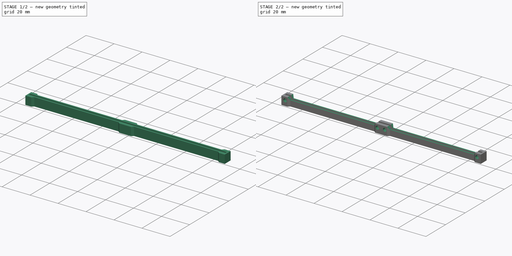
[diagram: build sequence overview — one tinted view per stage of 2, left to right]
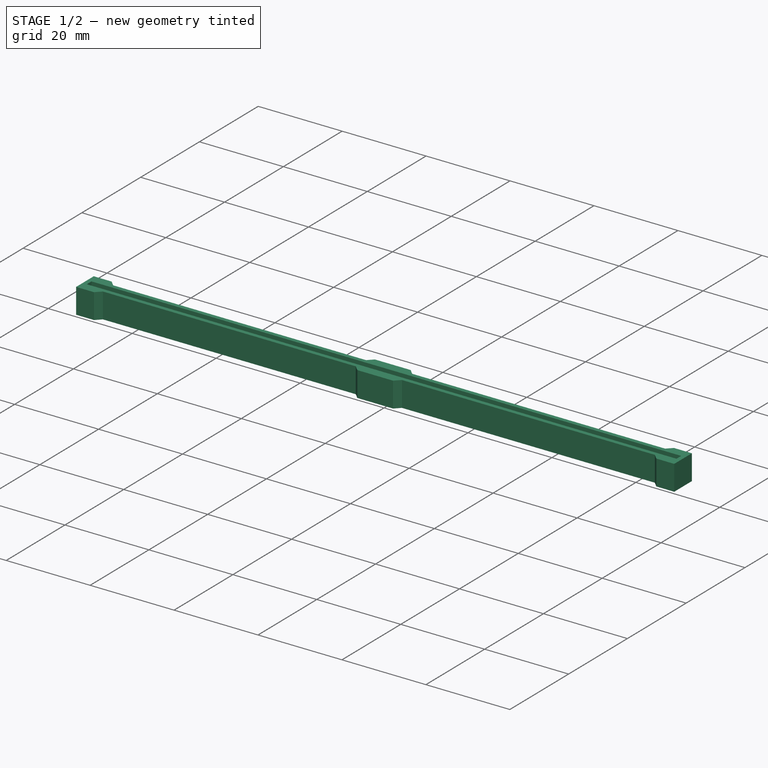
[diagram: stage 1 of 2 — iso view after this stage's code; geometry added in this stage tinted green]
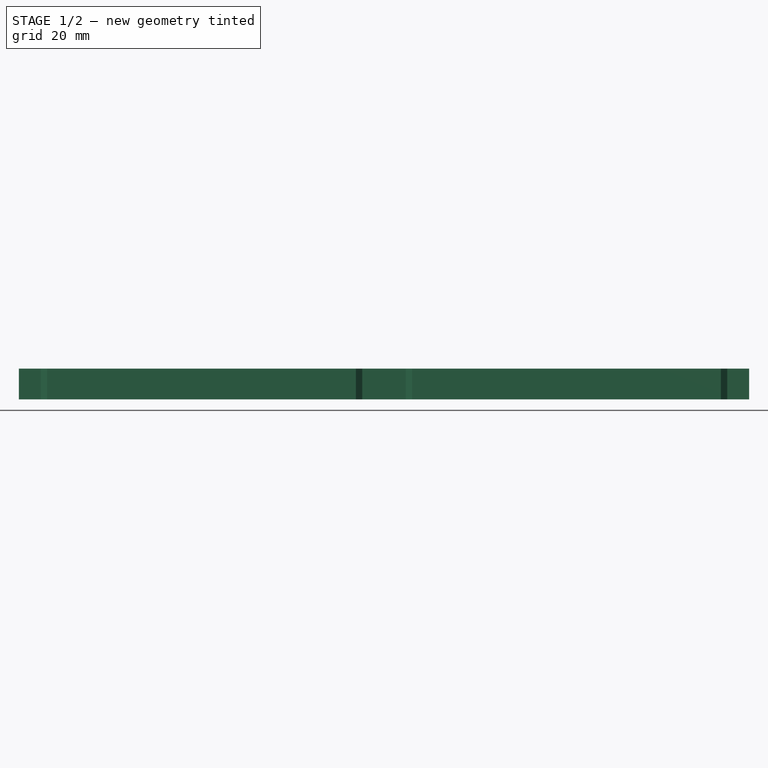
[diagram: stage 1 of 2 — front view after this stage's code; geometry added in this stage tinted green]
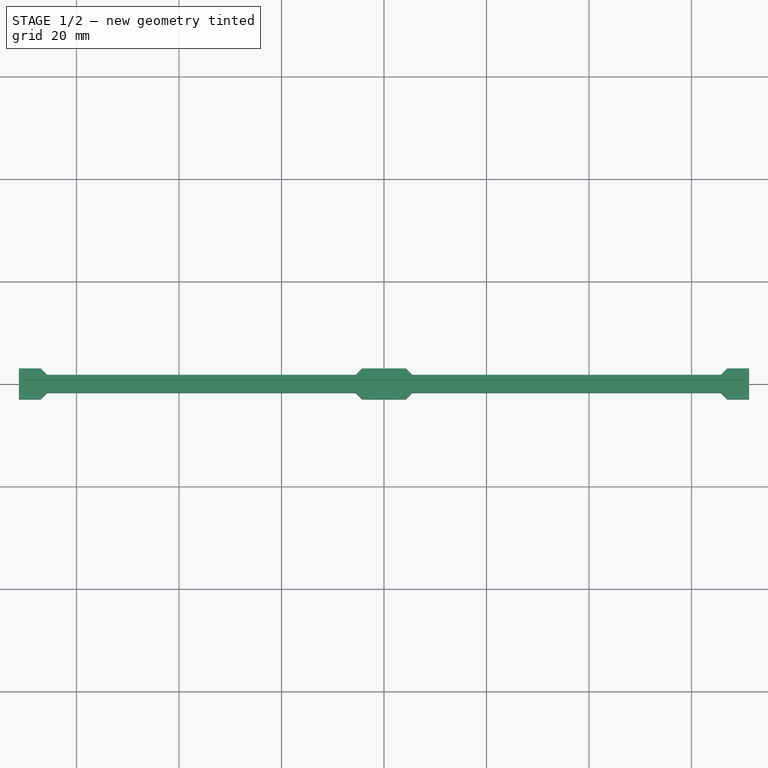
[diagram: stage 1 of 2 — top view after this stage's code; geometry added in this stage tinted green]
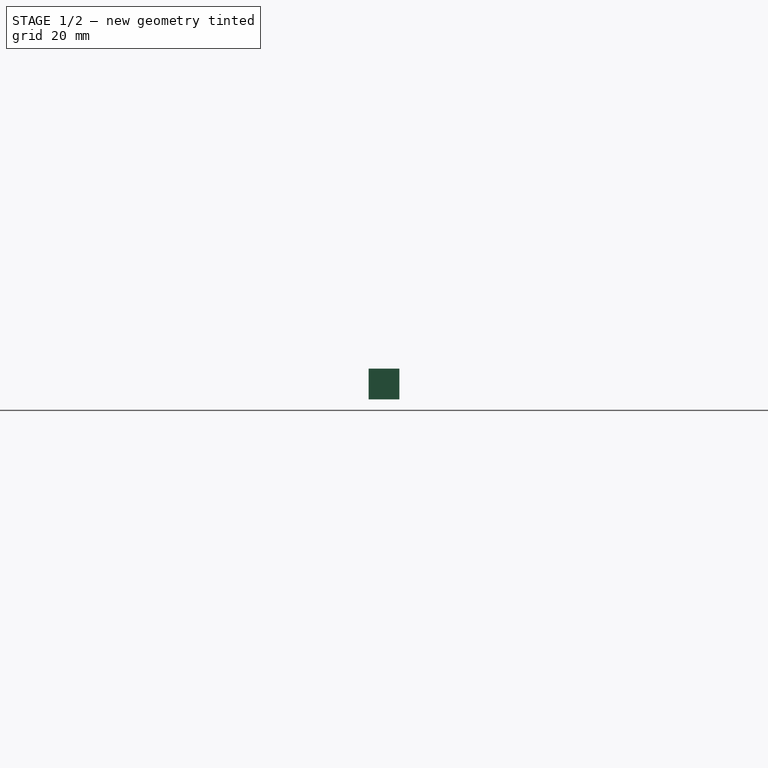
[diagram: stage 1 of 2 — right view after this stage's code; geometry added in this stage tinted green]
FCSTD DOCUMENT  (FreeCAD 0.19R24291 (Git))
Label: ri_cb-bracket
License: All rights reserved
LicenseURL: http://en.wikipedia.org/wiki/All_rights_reserved
objects: Sketcher::SketchObject×3, PartDesign::Pocket×2, PartDesign::Pad×1, PartDesign::Body×1, App::Part×1
note: 10 computed .brp shape members not serialized (recipe doc carries the construction recipe); baked Part::Feature solids carry a one-line shape summary decoded from their .brp

FEATURE [Sketcher::SketchObject] Sketch
  FullyConstrained = true
  MapMode = 5
  Support = -> [XY_Plane001]
  sketch-geometry (26):
    g0: LineSegment StartX=-71.25 StartY=3 StartZ=0 EndX=-71.25 EndY=-3 EndZ=0
    g1: LineSegment StartX=-71.25 StartY=-3 StartZ=0 EndX=-67 EndY=-3 EndZ=0
    g2: LineSegment StartX=-67 StartY=-3 StartZ=0 EndX=-65.75 EndY=-1.75 EndZ=0
    g3: LineSegment StartX=-65.75 StartY=-1.75 StartZ=0 EndX=-5.5 EndY=-1.75 EndZ=0
    g4: LineSegment StartX=-5.5 StartY=-1.75 StartZ=0 EndX=-4.25 EndY=-3 EndZ=0
    g5: LineSegment StartX=-4.25 StartY=-3 StartZ=0 EndX=4.25 EndY=-3 EndZ=0
    g6: LineSegment StartX=4.25 StartY=-3 StartZ=0 EndX=5.5 EndY=-1.75 EndZ=0
    g7: LineSegment StartX=5.5 StartY=-1.75 StartZ=0 EndX=65.75 EndY=-1.75 EndZ=0
    g8: LineSegment StartX=65.75 StartY=-1.75 StartZ=0 EndX=67 EndY=-3 EndZ=0
    g9: LineSegment StartX=67 StartY=-3 StartZ=0 EndX=71.25 EndY=-3 EndZ=0
    g10: LineSegment StartX=71.25 StartY=-3 StartZ=0 EndX=71.25 EndY=3 EndZ=0
    g11: LineSegment StartX=71.25 StartY=3 StartZ=0 EndX=67 EndY=3 EndZ=0
    g12: LineSegment StartX=67 StartY=3 StartZ=0 EndX=65.75 EndY=1.75 EndZ=0
    g13: LineSegment StartX=65.75 StartY=1.75 StartZ=0 EndX=5.5 EndY=1.75 EndZ=0
    g14: LineSegment StartX=5.5 StartY=1.75 StartZ=0 EndX=4.25 EndY=3 EndZ=0
    g15: LineSegment StartX=4.25 StartY=3 StartZ=0 EndX=-4.25 EndY=3 EndZ=0
    g16: LineSegment StartX=-4.25 StartY=3 StartZ=0 EndX=-5.5 EndY=1.75 EndZ=0
    g17: LineSegment StartX=-5.5 StartY=1.75 StartZ=0 EndX=-65.75 EndY=1.75 EndZ=0
    g18: LineSegment StartX=-65.75 StartY=1.75 StartZ=0 EndX=-67 EndY=3 EndZ=0
    g19: LineSegment StartX=-67 StartY=3 StartZ=0 EndX=-71.25 EndY=3 EndZ=0
    g20: GeomPoint X=-71.25 Y=-1.658e-13 Z=0
    g21: GeomPoint X=71.25 Y=1.658e-13 Z=0
    g22: GeomPoint X=0 Y=3 Z=0
    g23: GeomPoint X=0 Y=-3 Z=0
    g24: GeomPoint X=-5.5 Y=0 Z=0
    g25: GeomPoint X=5.5 Y=2e-16 Z=0
  constraints (60):
    c: Vertical(g0)
    c: Coincident(g0,g1)
    c: Horizontal(g1)
    c: Coincident(g1,g2)
    c: Coincident(g2,g3)
    c: Horizontal(g3)
    c: Coincident(g3,g4)
    c: Coincident(g4,g5)
    c: Coincident(g5,g6)
    c: Coincident(g6,g7)
    c: Coincident(g7,g8)
    c: Coincident(g8,g9)
    c: Coincident(g9,g10)
    c: Vertical(g10)
    c: Coincident(g10,g11)
    c: Horizontal(g11)
    c: Coincident(g11,g12)
    c: Coincident(g12,g13)
    c: Horizontal(g13)
    c: Coincident(g13,g14)
    c: Coincident(g14,g15)
    c: Coincident(g15,g16)
    c: Coincident(g16,g17)
    c: Coincident(g17,g18)
    c: Coincident(g18,g19)
    c: Coincident(g19,g0)
    c: PointOnObject(g22,g15)
    c: Symmetric(g22,g23,g-1)
    c: Symmetric(g0,g0,g20)
    c: Symmetric(g9,g10,g21)
    c: Equal(g11,g9)
    c: Equal(g13,g7)
    c: Equal(g7,g3)
    c: Equal(g3,g17)
    c: Vertical(g7,g12)
    c: Vertical(g17,g2)
    c: Equal(g19,g1)
    c: Vertical(g15,g4)
    c: Vertical(g14,g5)
    c: Vertical(g23,g22)
    c: Equal(g19,g11)
    c: Angle(g17,g18) = 2.35619
    c: Angle(g16,g17) = 2.35619
    c: Angle(g13,g14) = 2.35619
    c: Angle(g12,g13) = 2.35619
    c: Tangent(g17,g13)
    c: Tangent(g3,g7)
    c: Tangent(g5,g1)
    c: Tangent(g5,g9)
    c: Tangent(g19,g15)
    c: Tangent(g15,g11)
    c: Symmetric(g20,g21,g-1)
    c: PointOnObject(g24,g-1)
    c: Symmetric(g16,g3,g24)
    c: Symmetric(g13,g6,g25)
    c: DistanceY(g7,g12) = 3.5
    c: DistanceY(g9,g10) = 6
    c: DistanceX(g20,g21) = 142.5
    c: DistanceX(g0,g17) = 5.5
    c: DistanceX(g16,g13) = 11
FEATURE [PartDesign::Pad] Pad
  Direction = (1,1,1)
  Length = 6
  Length2 = 100
  Profile = -> Sketch
  Refine = true
  Type = 0
FEATURE [Sketcher::SketchObject] Sketch001
  ExternalGeometry = -> [Pad]
  FullyConstrained = true
  MapMode = 5
  Placement = pos=(0,0,6) rot=(0,0,1;0rad)
  Support = -> [Pad]
  sketch-geometry (4):
    g0: LineSegment StartX=-70.25 StartY=0.8 StartZ=0 EndX=70.25 EndY=0.8 EndZ=0
    g1: LineSegment StartX=70.25 StartY=0.8 StartZ=0 EndX=70.25 EndY=-0.8 EndZ=0
    g2: LineSegment StartX=70.25 StartY=-0.8 StartZ=0 EndX=-70.25 EndY=-0.8 EndZ=0
    g3: LineSegment StartX=-70.25 StartY=-0.8 StartZ=0 EndX=-70.25 EndY=0.8 EndZ=0
  constraints (11):
    c: Coincident(g0,g1)
    c: Coincident(g1,g2)
    c: Coincident(g2,g3)
    c: Coincident(g3,g0)
    c: Horizontal(g0)
    c: Horizontal(g2)
    c: Vertical(g1)
    c: Vertical(g3)
    c: Symmetric(g0,g1,g-1)
    c: DistanceY(g3,g3) = 1.6
    c: DistanceX(g0,g0) = 140.5
FEATURE [PartDesign::Pocket] Pocket
  BaseFeature = -> Pad
  Length = 4.5
  Length2 = 100
  Profile = -> Sketch001
  Refine = true
  Type = 0
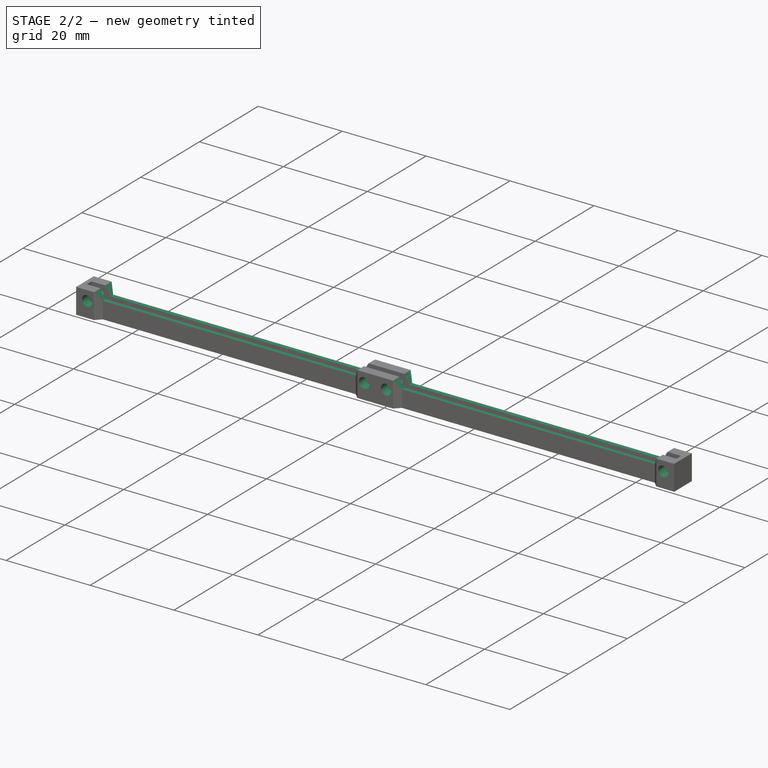
[diagram: stage 2 of 2 — iso view after this stage's code; geometry added in this stage tinted green]
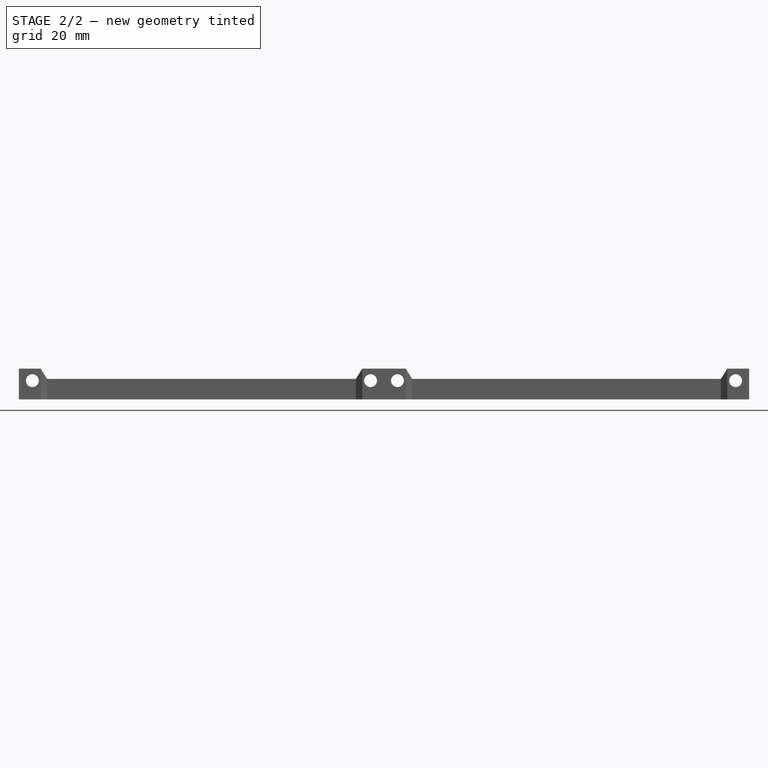
[diagram: stage 2 of 2 — front view after this stage's code; geometry added in this stage tinted green]
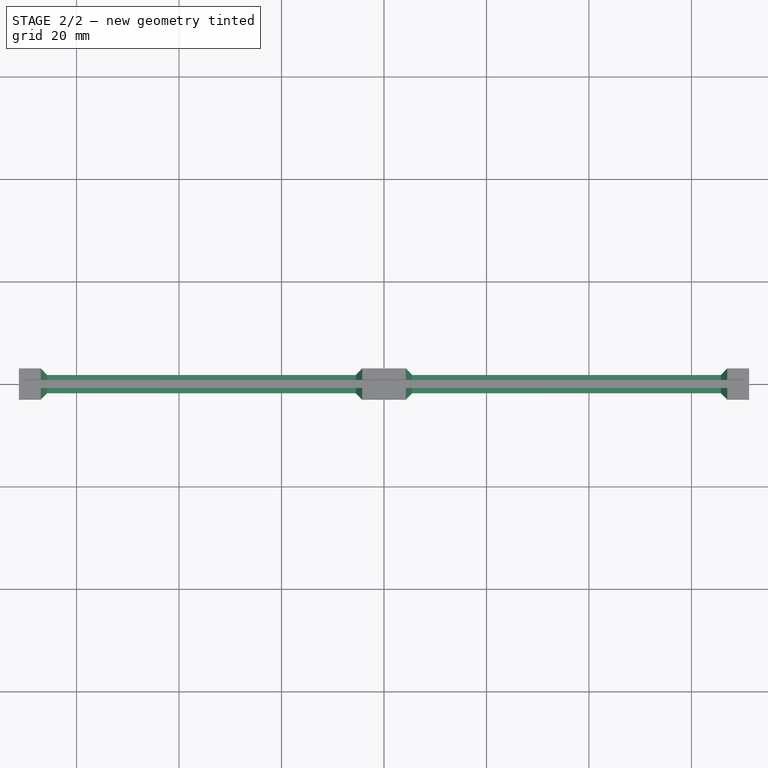
[diagram: stage 2 of 2 — top view after this stage's code; geometry added in this stage tinted green]
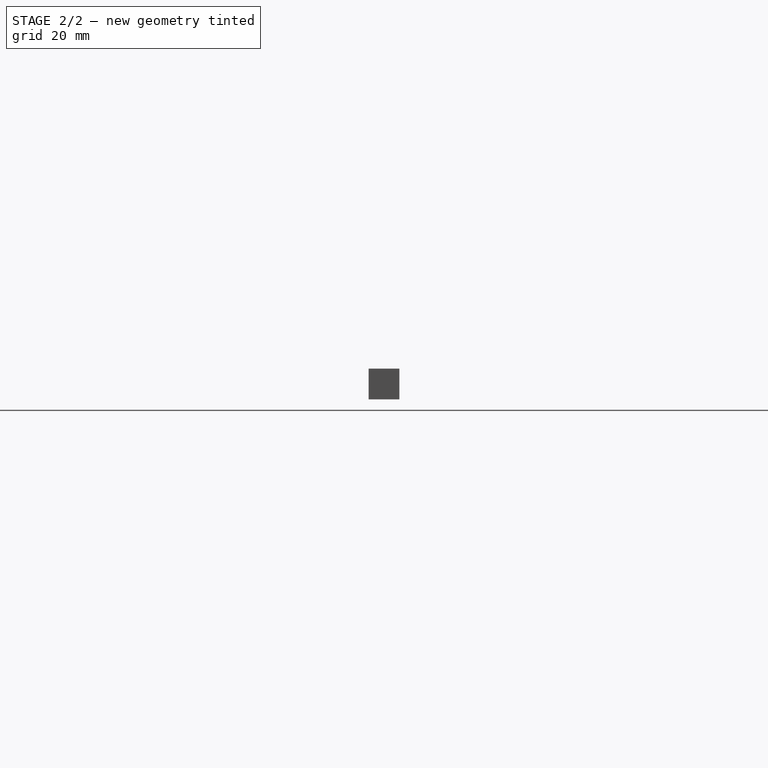
[diagram: stage 2 of 2 — right view after this stage's code; geometry added in this stage tinted green]
FEATURE [Sketcher::SketchObject] Sketch002
  ExternalGeometry = -> [Pocket]
  FullyConstrained = true
  MapMode = 5
  Placement = pos=(0,-3,0) rot=(1,0,0;1.5708rad)
  Support = -> [Pocket]
  expr: Constraints[29] = 63.7 + 2.3
  expr: Constraints[30] = 63.7 + 2.3
  expr: Constraints[28] = 2.3 / 2 + 1 + 1.5
  expr: Constraints[20] = 4.5 - 2.5
  sketch-geometry (17):
    g0: GeomPoint X=0 Y=6 Z=0
    g1: LineSegment StartX=-67 StartY=6 StartZ=0 EndX=-65.75 EndY=4 EndZ=0
    g2: LineSegment StartX=-65.75 StartY=4 StartZ=0 EndX=-5.5 EndY=4 EndZ=0
    g3: LineSegment StartX=-5.5 StartY=4 StartZ=0 EndX=-4.25 EndY=6 EndZ=0
    g4: LineSegment StartX=-4.25 StartY=6 StartZ=0 EndX=-67 EndY=6 EndZ=0
    g5: LineSegment StartX=4.25 StartY=6 StartZ=0 EndX=5.5 EndY=4 EndZ=0
    g6: LineSegment StartX=5.5 StartY=4 StartZ=0 EndX=65.75 EndY=4 EndZ=0
    g7: LineSegment StartX=65.75 StartY=4 StartZ=0 EndX=67 EndY=6 EndZ=0
    g8: LineSegment StartX=67 StartY=6 StartZ=0 EndX=4.25 EndY=6 EndZ=0
    g9: Circle CenterX=-68.625 CenterY=3.65 CenterZ=0 NormalX=0 NormalY=0 NormalZ=1 AngleXU=0 Radius=1.25
    g10: Circle CenterX=-2.625 CenterY=3.65 CenterZ=0 NormalX=0 NormalY=0 NormalZ=1 AngleXU=0 Radius=1.25
    g11: Circle CenterX=2.625 CenterY=3.65 CenterZ=0 NormalX=0 NormalY=0 NormalZ=1 AngleXU=0 Radius=1.25
    g12: Circle CenterX=68.625 CenterY=3.65 CenterZ=0 NormalX=0 NormalY=0 NormalZ=1 AngleXU=0 Radius=1.25
    g13: GeomPoint X=-35.625 Y=0 Z=0
    g14: GeomPoint X=35.625 Y=0 Z=0
    g15: GeomPoint X=-35.625 Y=3.65 Z=0
    g16: GeomPoint X=35.625 Y=3.65 Z=0
  constraints (37):
    c: PointOnObject(g0,g-14)
    c: PointOnObject(g0,g-2)
    c: Coincident(g-11,g1)
    c: Coincident(g1,g2)
    c: Horizontal(g2)
    c: Coincident(g2,g3)
    c: Coincident(g3,g-14)
    c: Coincident(g3,g4)
    c: Coincident(g4,g1)
    c: Coincident(g-14,g5)
    c: Coincident(g5,g6)
    c: Coincident(g6,g7)
    c: Coincident(g7,g-10)
    c: Coincident(g7,g8)
    c: Coincident(g8,g5)
    c: Tangent(g2,g6)
    c: Vertical(g1,g-4)
    c: Vertical(g2,g-5)
    c: Vertical(g5,g-7)
    c: Vertical(g-9,g6)
    c: DistanceY(g1,g-12) = 2
    c: Equal(g12,g11)
    c: Equal(g11,g10)
    c: Equal(g10,g9)
    c: Horizontal(g9,g10)
    c: Horizontal(g10,g11)
    c: Horizontal(g11,g12)
    c: Diameter(g9) = 2.5
    c: DistanceY(g-12,g9) = 3.65
    c: DistanceX(g9,g10) = 66
    c: DistanceX(g11,g12) = 66
    c: Symmetric(g-12,g-1,g13)
    c: Symmetric(g-1,g-13,g14)
    c: Symmetric(g9,g10,g15)
    c: Symmetric(g11,g12,g16)
    c: Vertical(g16,g14)
    c: Vertical(g15,g13)
FEATURE [PartDesign::Pocket] Pocket001
  BaseFeature = -> Pocket
  Length = 5
  Length2 = 100
  Profile = -> Sketch002
  Refine = true
  Type = 1
FEATURE [PartDesign::Body] Body
  Group = -> [Sketch,Pad,Sketch001,Pocket,Sketch002,Pocket001]
  Origin = -> Origin001
  Tip = -> Pocket001
FEATURE [App::Part] Part
  Group = -> [Body]
  Origin = -> Origin
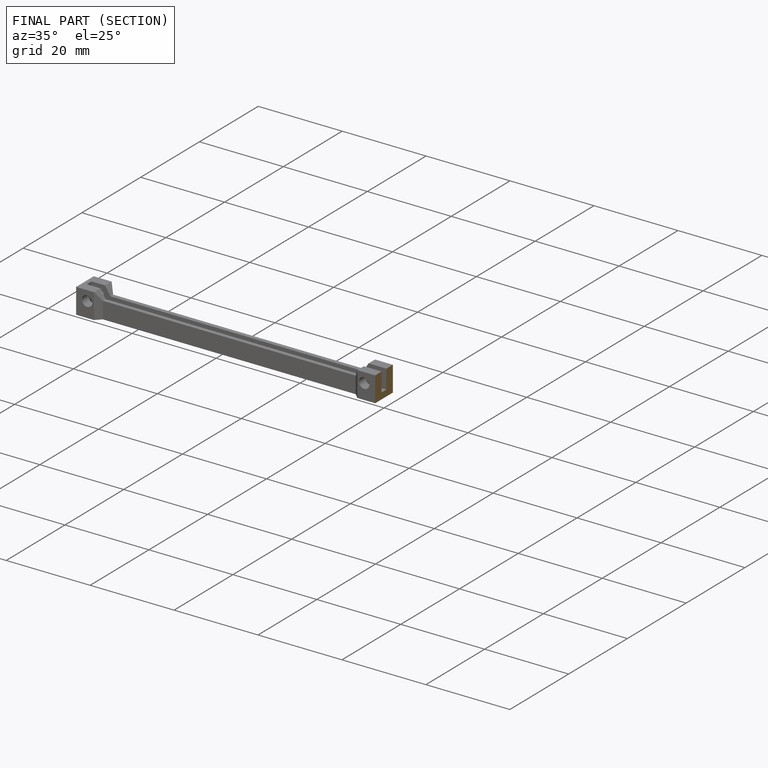
[diagram: finished part — half-section view (interior)]
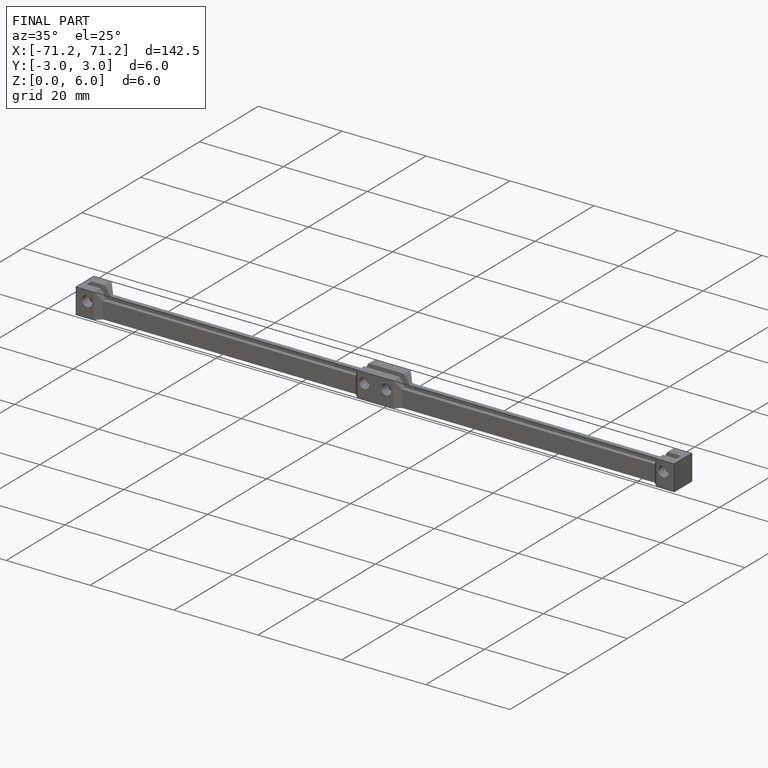
[diagram: finished part — iso view with bounding-box wireframe]
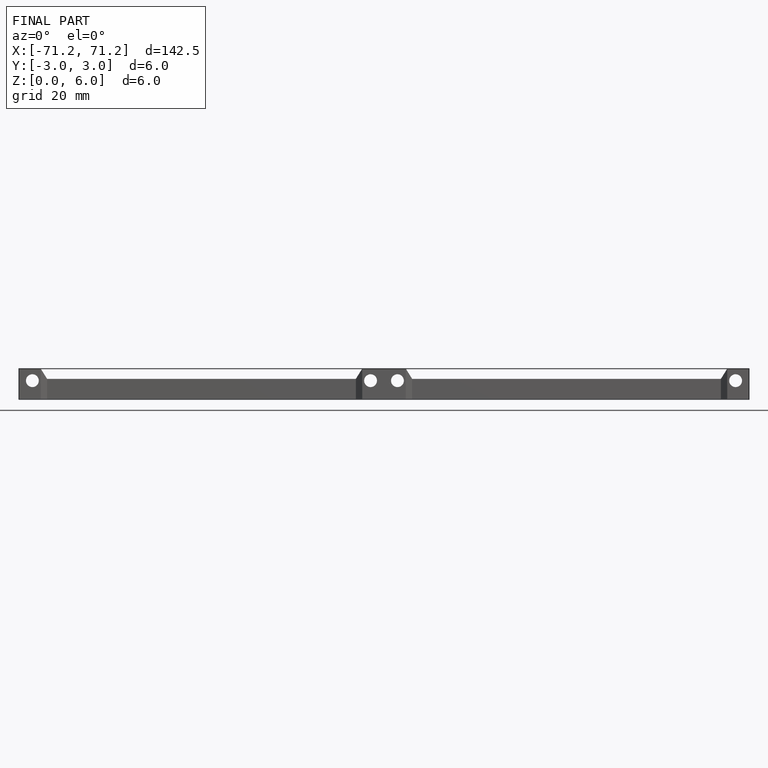
[diagram: finished part — front view with bounding-box wireframe]
